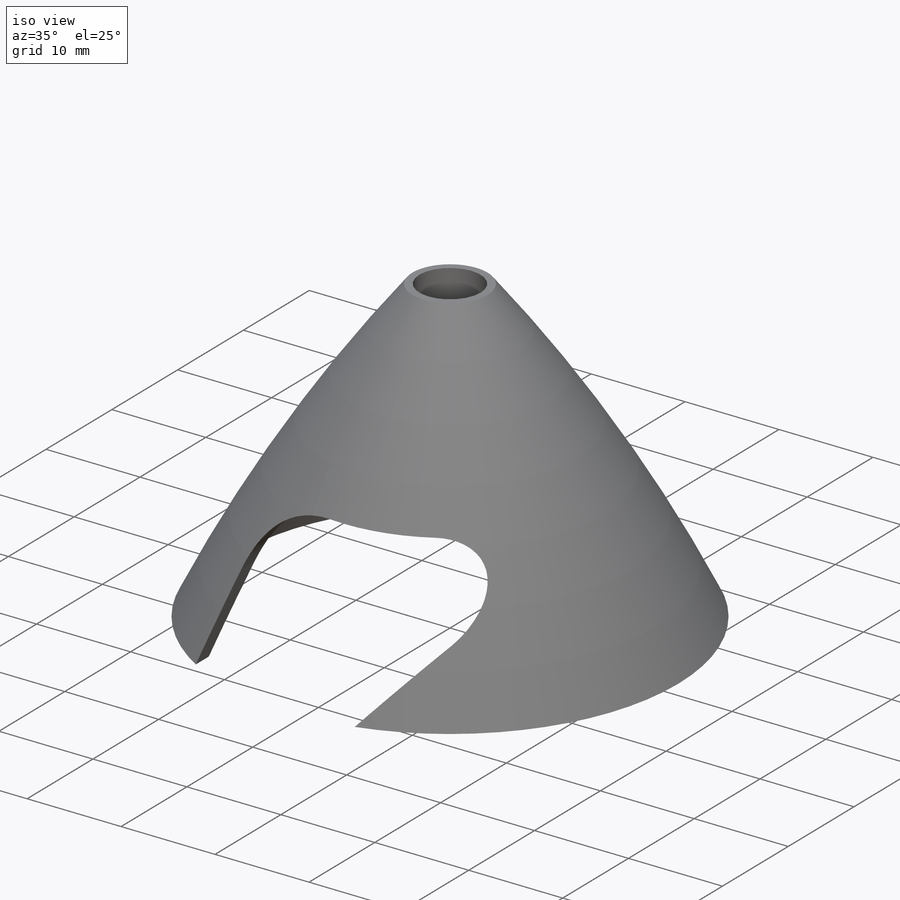
[diagram: iso view]
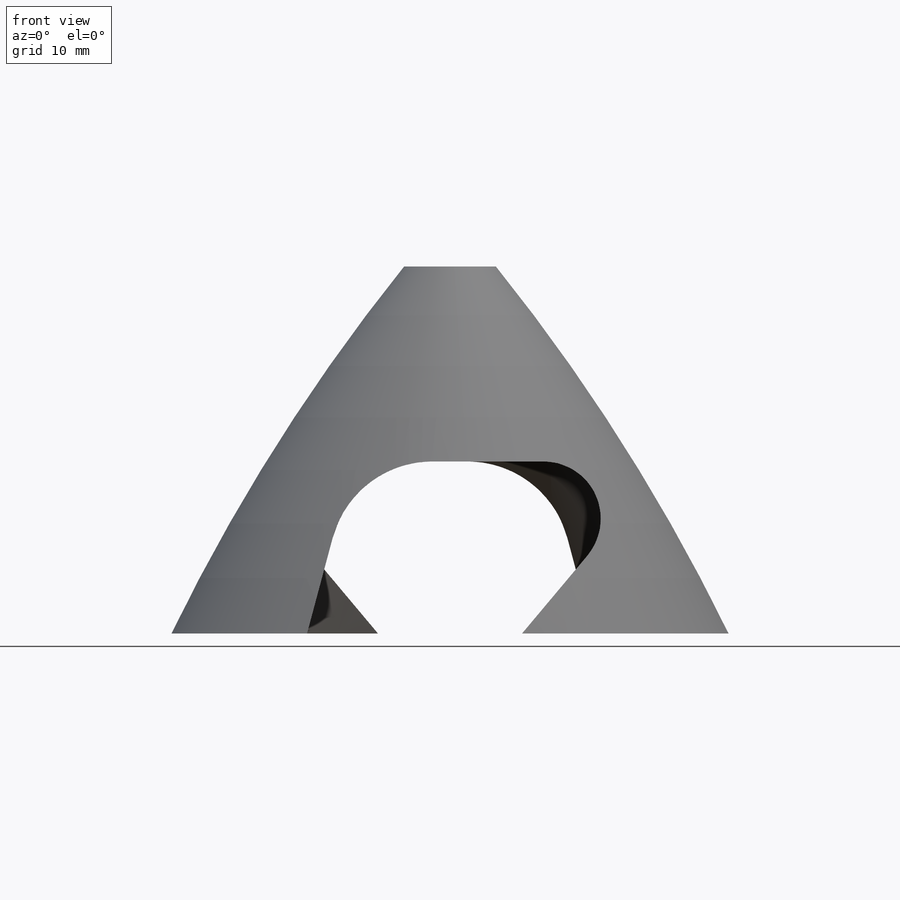
[diagram: front view]
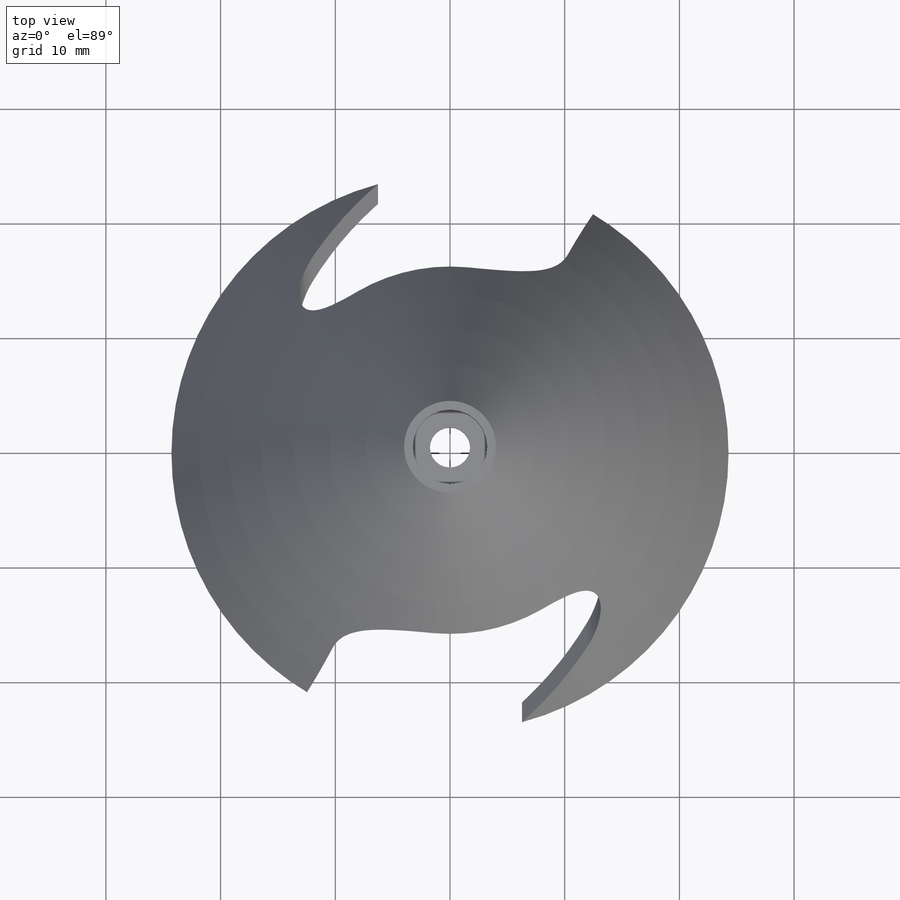
[diagram: top view]
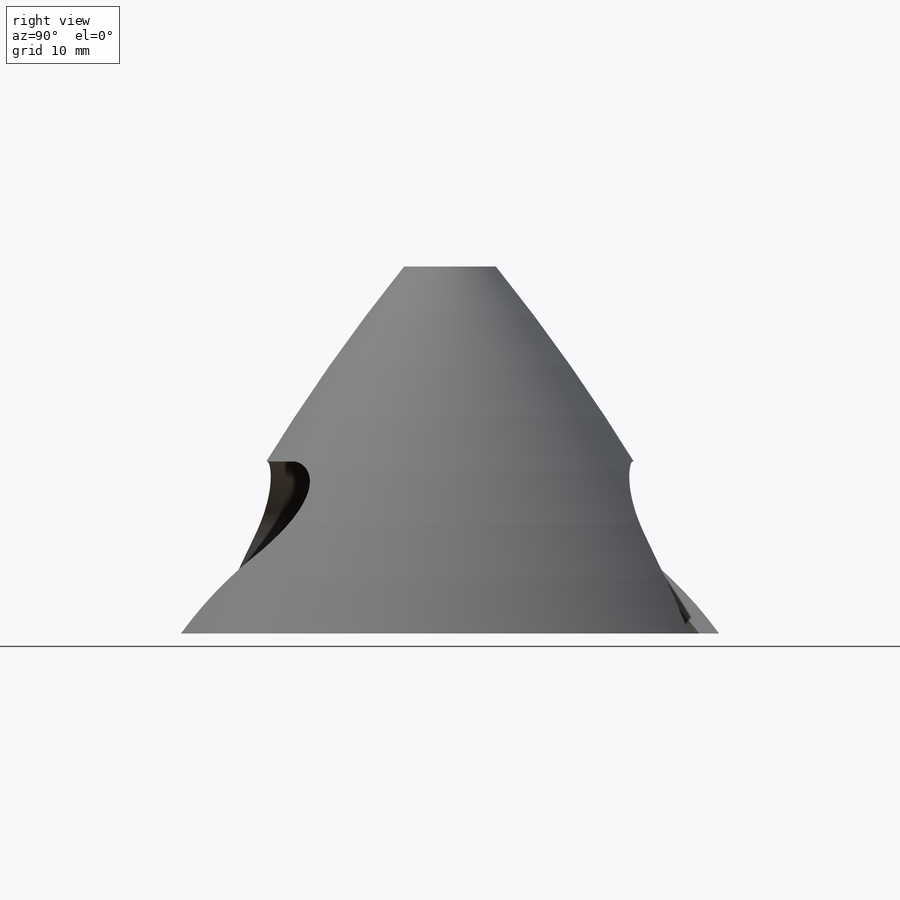
[diagram: right view]
SOLIDWORKS PART (.sldprt)
format: sldprt  version: not decoded by parser v0  size: 245,760 bytes
history: native  units: mm
features: sketch x4, plane x3, cut_extrude x3, material x1, revolve x1, shell x1, pattern_circular x1 + 3 further entries (+10 scaffold rows collapsed)
feature tree (27):
  scaffold x10  (default folders/planes/origin — collapsed)
  material  "재질 <지정안함>"
  "곡면 바디"
  "솔리드 바디"
  plane  "정면"
  plane  "윗면"
  plane  "우측면"
  "원점"
  sketch  "스케치1"  dims[c1.D5=110.0mm c1.D4=115.0mm c2.D5=170.0mm c2.D2=170.0mm c2.D1=41.0mm c3.D2=94.0mm c3.D3=57.75mm c3.D4=~23.619879mm c3.D5=~24.448165mm c4.D4=3.0mm c4.D6=~25.284096mm c4.D2=61.0mm c4.D3=~12.453199mm c5.D4=94.0mm c5.D6=1.0mm c5.D1=~24.285796mm c5.D3=8.0mm c6.D4=32.0mm c6.D3=~128.543262mm]
  revolve  "회전1"  Angle=360deg
  shell  "쉘1"  Thickness=1.5mm
  sketch  "스케치7"  dims[D1=6.5mm]
  cut_extrude  "돌출1"  Depth=3mm
  sketch  "스케치8"  dims[D1=3.5mm]
  cut_extrude  "돌출2"  Depth=40mm
  sketch  "스케치9"  dims[c1.D4=9.0mm c1.D3=5.0mm c1.D1=15.0mm c1.D2=12.0mm c2.D3=6.0mm c2.D5=~48.571592mm c3.D5=130.0deg c3.D6=2.0mm c3.D7=4.6mm c3.D2=13.0mm c3.D8=9.0mm c4.D8=75.0deg]
  cut_extrude  "돌출3"  Depth=30mm
  pattern_circular  "원형 패턴1"  Count=2 Angle=180deg
decode coverage: 10 of 10 modeling features carry decoded parameters; 3 rows unclassified (native names shown)
note: ~ marks probable driven/reference dimensions
note: suppression state not decoded; provenance and decode notes live in map.json
